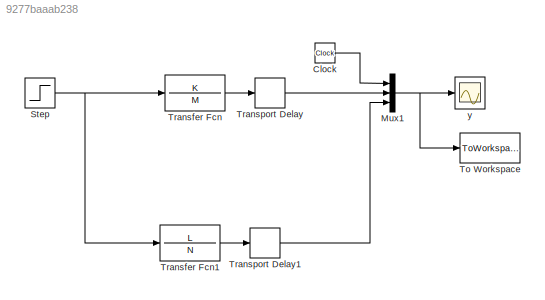
MODEL slx_9277baaab238
KIND model
CONFIG AbsTol = auto
CONFIG EnableMultiTasking = on
CONFIG FixedStep = ptv_sim_step
CONFIG MaxStep = auto
CONFIG MinStep = auto
CONFIG RelTol = 1e-3
CONFIG SampleTimeConstraint = Unconstrained
CONFIG SolverName = ode4
CONFIG StartTime = 0.0
CONFIG StopTime = cas_simulacie
BLOCK [Clock] Clock
BLOCK [Mux] Mux1
  DisplayOption = bar
  Inputs = 3
BLOCK [Step] Step
  SampleTime = 0
  Time = 0
BLOCK [ToWorkspace] To Workspace
  MaxDataPoints = inf
  SampleTime = -1
  VariableName = id_data3
BLOCK [TransferFcn] Transfer Fcn
  Denominator = M
  Numerator = K
BLOCK [TransferFcn] Transfer Fcn1
  Denominator = N
  Numerator = L
BLOCK [TransportDelay] Transport Delay
  DelayTime = DD2
BLOCK [TransportDelay] Transport Delay1
  DelayTime = DD
BLOCK [Scope] y
  DataLoggingDecimateData = on
  DataLoggingDecimation = 1
  DataLoggingLimitDataPoints = on
  DataLoggingSaveFormat = Structure With Time
  DataLoggingVariableName = ScopeData2
  Floating = off
  GraphicalSettings = {"GraphicalSettings":{"LegacySettings":true,"Style":{"Style":{"MinimizeControls":"false","PlotType":"Auto"}}}}
  LayoutDimensionsString = [1 1]
  NumInputPorts = 1
  WasSavedAsWebScope = on
LINE Clock:1 -> Mux1:1
NET Mux1:1 -> To Workspace:1, y:1
NET Step:1 -> Transfer Fcn1:1, Transfer Fcn:1
LINE Transfer Fcn1:1 -> Transport Delay1:1
LINE Transfer Fcn:1 -> Transport Delay:1
LINE Transport Delay1:1 -> Mux1:3
LINE Transport Delay:1 -> Mux1:2
note: NET lines group one-source signal fan-out (src -> all destinations, sorted); 1:1 wires keep LINE
